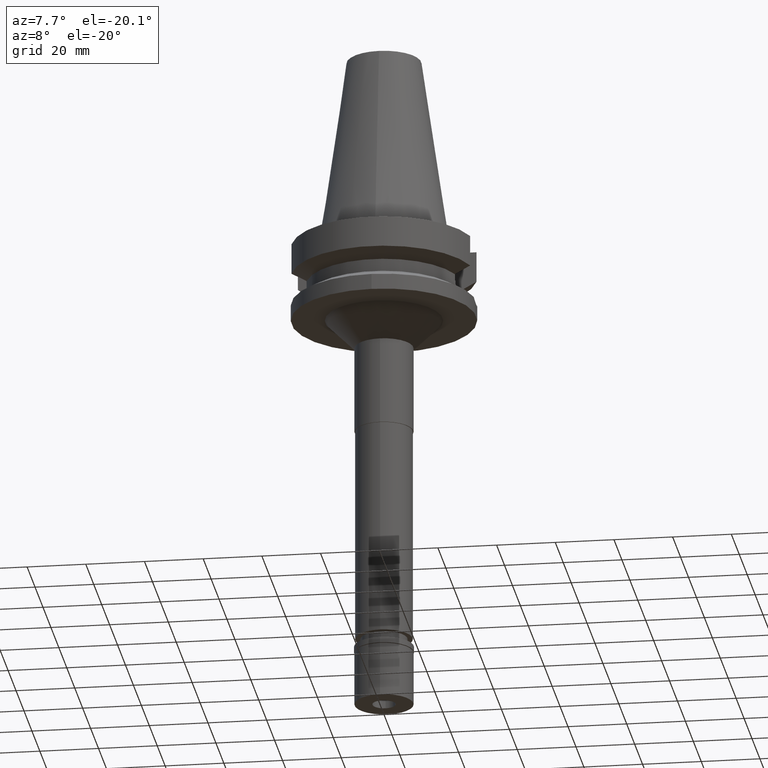
[diagram: clean part render]
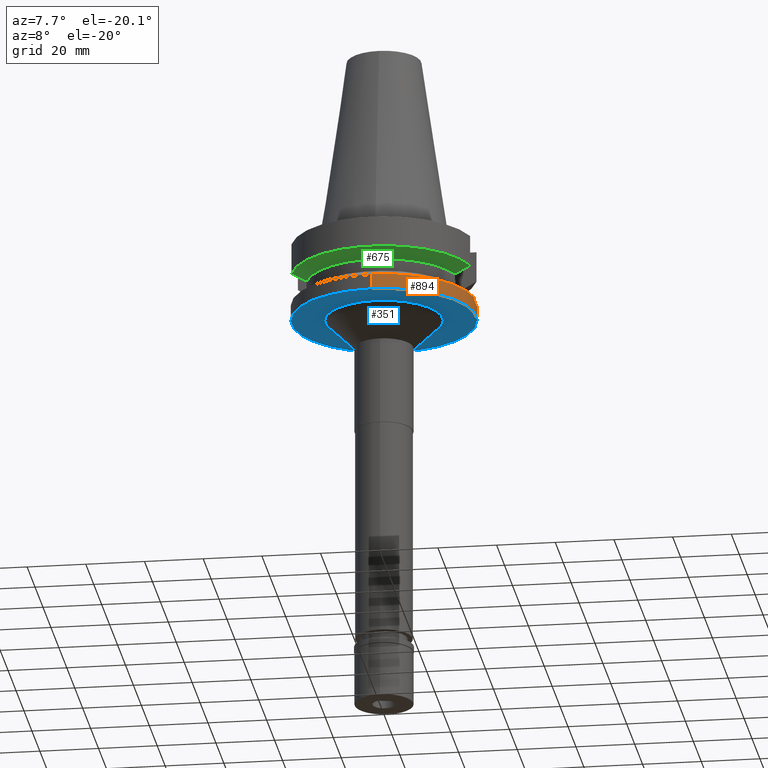
[diagram: same view with three faces highlighted in distinct colors, each labeled with its STEP entity id]
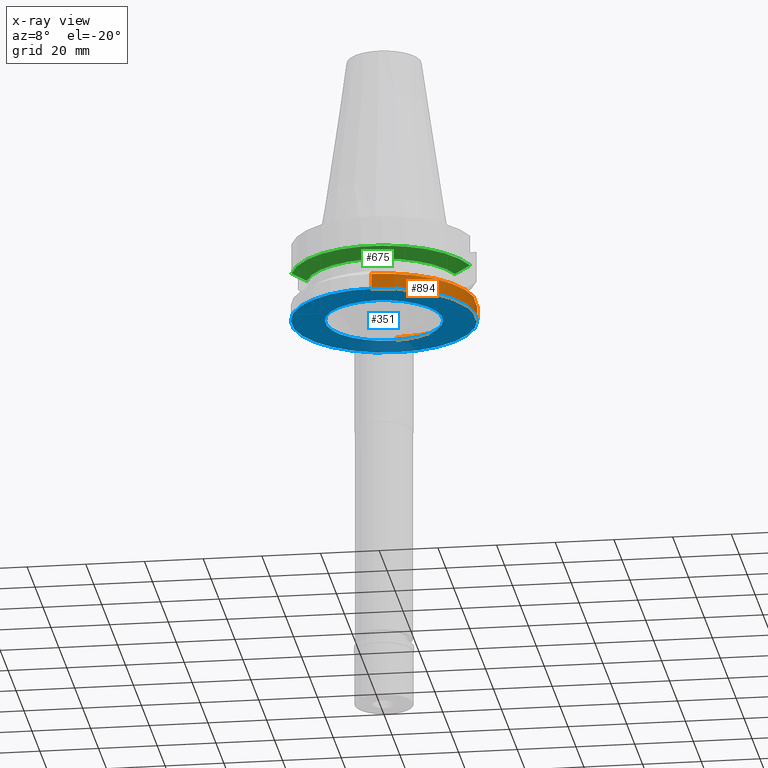
[diagram: x-ray of the same camera — body ghosted, the three highlighted faces saturated]
A machine part, auxiliary view with three faces highlighted in distinct colors.
The next image is the same camera in x-ray (body ghosted, the three faces saturated) — at least one of them is partly hidden behind the body in this view.
Their STEP definitions:

[orange] entity #894 — the highlighted cylindrical surface (partial cylindrical patch) has radius 31.5 mm, axis along (0, 0, -1).
#4 = ORIENTED_EDGE ( 'NONE', *, *, #2268, .T. ) ;
#131 = LINE ( 'NONE', #2894, #541 ) ;
#195 = CARTESIAN_POINT ( 'NONE',  ( 31.49259467034124782, -0.7874548469573079412, -22.97109692753277699 ) ) ;
#261 = DIRECTION ( 'NONE',  ( 0.0000000000000000000, 0.0000000000000000000, -1.000000000000000000 ) ) ;
#293 = EDGE_CURVE ( 'NONE', #1372, #372, #791, .T. ) ;
#306 = CARTESIAN_POINT ( 'NONE',  ( 0.0000000000000000000, 0.0000000000000000000, -21.63449434733000132 ) ) ;
#372 = VERTEX_POINT ( 'NONE', #538 ) ;
#378 = CIRCLE ( 'NONE', #2901, 31.50000000000001421 ) ;
#513 = ORIENTED_EDGE ( 'NONE', *, *, #985, .T. ) ;
#538 = CARTESIAN_POINT ( 'NONE',  ( 0.0000000000000000000, 31.50000000000000000, -27.00000000000000000 ) ) ;
#541 = VECTOR ( 'NONE', #1193, 1000.000000000000000 ) ;
#564 = EDGE_CURVE ( 'NONE', #2762, #2588, #2683, .T. ) ;
#570 = ORIENTED_EDGE ( 'NONE', *, *, #2145, .T. ) ;
#597 = CARTESIAN_POINT ( 'NONE',  ( 31.46967550390165158, 1.577178520063330147, -22.88365894156468983 ) ) ;
#700 = CARTESIAN_POINT ( 'NONE',  ( 31.17899877608999759, -4.485536235554000051, -21.63449434733000132 ) ) ;
#753 = CARTESIAN_POINT ( 'NONE',  ( 0.0000000000000000000, 0.0000000000000000000, -21.63449434733000132 ) ) ;
#791 = LINE ( 'NONE', #1991, #2271 ) ;
#806 = DIRECTION ( 'NONE',  ( 0.0000000000000000000, 1.000000000000000000, 0.0000000000000000000 ) ) ;
#862 = CARTESIAN_POINT ( 'NONE',  ( 0.0000000000000000000, 0.0000000000000000000, -27.00000000000000000 ) ) ;
#874 = CYLINDRICAL_SURFACE ( 'NONE', #945, 31.50000000000000000 ) ;
#885 = CARTESIAN_POINT ( 'NONE',  ( 31.17899877608999759, 4.485536235554000051, -21.63449434733000132 ) ) ;
#892 = CARTESIAN_POINT ( 'NONE',  ( 31.34930674665523753, -3.083094617881187105, -22.38886404829550258 ) ) ;
#894 = ADVANCED_FACE ( 'NONE', ( #1107 ), #874, .T. ) ;
#919 = EDGE_CURVE ( 'NONE', #2203, #3008, #131, .T. ) ;
#930 = AXIS2_PLACEMENT_3D ( 'NONE', #862, #1822, #1108 ) ;
#945 = AXIS2_PLACEMENT_3D ( 'NONE', #2671, #1668, #1718 ) ;
#985 = EDGE_CURVE ( 'NONE', #1372, #2762, #2961, .T. ) ;
#1107 = FACE_OUTER_BOUND ( 'NONE', #2559, .T. ) ;
#1108 = DIRECTION ( 'NONE',  ( 0.0000000000000000000, -1.000000000000000000, 0.0000000000000000000 ) ) ;
#1193 = DIRECTION ( 'NONE',  ( 0.0000000000000000000, -1.099151708819000049E-13, -1.000000000000000000 ) ) ;
#1307 = AXIS2_PLACEMENT_3D ( 'NONE', #306, #261, #806 ) ;
#1372 = VERTEX_POINT ( 'NONE', #1429 ) ;
#1391 = CARTESIAN_POINT ( 'NONE',  ( 31.44158353607694067, -1.955065889798571321, -22.76910259099622991 ) ) ;
#1407 = CARTESIAN_POINT ( 'NONE',  ( 31.49999999999963407, -0.3946661846352950143, -23.00000000000000000 ) ) ;
#1429 = CARTESIAN_POINT ( 'NONE',  ( 0.0000000000000000000, 31.50000000000000000, -21.63449434733000132 ) ) ;
#1595 = VERTEX_POINT ( 'NONE', #2986 ) ;
#1597 = CARTESIAN_POINT ( 'NONE',  ( 31.50000000000073541, 0.7893576119378173939, -23.00000000000000355 ) ) ;
#1665 = ORIENTED_EDGE ( 'NONE', *, *, #2365, .T. ) ;
#1668 = DIRECTION ( 'NONE',  ( 0.0000000000000000000, 0.0000000000000000000, -1.000000000000000000 ) ) ;
#1718 = DIRECTION ( 'NONE',  ( 0.0000000000000000000, -1.000000000000000000, 0.0000000000000000000 ) ) ;
#1822 = DIRECTION ( 'NONE',  ( 0.0000000000000000000, 0.0000000000000000000, 1.000000000000000000 ) ) ;
#1837 = CARTESIAN_POINT ( 'NONE',  ( 31.50000000000000000, -2.934563038329999756E-11, -23.00000000000000000 ) ) ;
#1961 = DIRECTION ( 'NONE',  ( 0.0000000000000000000, 0.0000000000000000000, -1.000000000000000000 ) ) ;
#1973 = DIRECTION ( 'NONE',  ( 0.0000000000000000000, 1.099151708819000049E-13, -1.000000000000000000 ) ) ;
#1991 = CARTESIAN_POINT ( 'NONE',  ( 0.0000000000000000000, 31.50000000000000000, -21.63449434733000132 ) ) ;
#2145 = EDGE_CURVE ( 'NONE', #3008, #372, #2753, .T. ) ;
#2154 = CARTESIAN_POINT ( 'NONE',  ( 31.27123206109135722, -3.806896411652039625, -22.05417675796460131 ) ) ;
#2203 = VERTEX_POINT ( 'NONE', #2291 ) ;
#2268 = EDGE_CURVE ( 'NONE', #2588, #1595, #2867, .T. ) ;
#2271 = VECTOR ( 'NONE', #1973, 1000.000000000000000 ) ;
#2291 = CARTESIAN_POINT ( 'NONE',  ( 0.0000000000000000000, -31.50000000000000000, -21.63449434733000132 ) ) ;
#2365 = EDGE_CURVE ( 'NONE', #1595, #2203, #378, .T. ) ;
#2367 = CARTESIAN_POINT ( 'NONE',  ( 31.39916929733682593, -2.525575560059503122, -22.59615553196653792 ) ) ;
#2376 = ORIENTED_EDGE ( 'NONE', *, *, #919, .T. ) ;
#2384 = CARTESIAN_POINT ( 'NONE',  ( 31.22674061651521882, -4.153682315317585250, -21.85718026892643451 ) ) ;
#2513 = CARTESIAN_POINT ( 'NONE',  ( 0.0000000000000000000, -31.50000000000000000, -27.00000000000000000 ) ) ;
#2559 = EDGE_LOOP ( 'NONE', ( #1665, #2376, #570, #2880, #513, #3080, #4 ) ) ;
#2588 = VERTEX_POINT ( 'NONE', #1837 ) ;
#2621 = CARTESIAN_POINT ( 'NONE',  ( 31.17899877608999759, 4.485536235554000051, -21.63449434733000132 ) ) ;
#2641 = CARTESIAN_POINT ( 'NONE',  ( 31.50000000000000000, -2.934563038329999756E-11, -23.00000000000000000 ) ) ;
#2661 = CARTESIAN_POINT ( 'NONE',  ( 31.46325379447574733, -1.570752963011715853, -22.85518567226871767 ) ) ;
#2671 = CARTESIAN_POINT ( 'NONE',  ( 0.0000000000000000000, 0.0000000000000000000, 0.0000000000000000000 ) ) ;
#2683 = B_SPLINE_CURVE_WITH_KNOTS ( 'NONE', 3,
 ( #885, #3049, #2861, #597, #1597, #2845 ),
 .UNSPECIFIED., .F., .F.,
 ( 4, 2, 4 ),
 ( 0.0000000000000000000, 0.5000000000000000000, 1.000000000000000000 ),
 .UNSPECIFIED. ) ;
#2714 = DIRECTION ( 'NONE',  ( 0.9898094849552905306, -0.1423979757318985240, 0.0000000000000000000 ) ) ;
#2753 = CIRCLE ( 'NONE', #930, 31.50000000000000000 ) ;
#2762 = VERTEX_POINT ( 'NONE', #2621 ) ;
#2845 = CARTESIAN_POINT ( 'NONE',  ( 31.50000000000000000, -2.934563038329999756E-11, -23.00000000000000000 ) ) ;
#2861 = CARTESIAN_POINT ( 'NONE',  ( 31.35695069539817936, 3.093478865514339038, -22.42399680451590527 ) ) ;
#2867 = B_SPLINE_CURVE_WITH_KNOTS ( 'NONE', 3,
 ( #2641, #1407, #195, #2661, #1391, #2367, #2868, #892, #2917, #2154, #2384, #700 ),
 .UNSPECIFIED., .F., .F.,
 ( 4, 2, 2, 2, 2, 4 ),
 ( 0.0000000000000000000, 0.2499999999999996669, 0.4999999999999993339, 0.6249999999999992228, 0.7499999999999992228, 1.000000000000000000 ),
 .UNSPECIFIED. ) ;
#2868 = CARTESIAN_POINT ( 'NONE',  ( 31.38348763311464396, -2.713154971768460655, -22.53163762736170028 ) ) ;
#2880 = ORIENTED_EDGE ( 'NONE', *, *, #293, .F. ) ;
#2894 = CARTESIAN_POINT ( 'NONE',  ( 0.0000000000000000000, -31.50000000000000000, -21.63449434733000132 ) ) ;
#2901 = AXIS2_PLACEMENT_3D ( 'NONE', #753, #1961, #2714 ) ;
#2917 = CARTESIAN_POINT ( 'NONE',  ( 31.33093042433985431, -3.264337983741049776, -22.31113734268445370 ) ) ;
#2961 = CIRCLE ( 'NONE', #1307, 31.50000000000000000 ) ;
#2986 = CARTESIAN_POINT ( 'NONE',  ( 31.17899877608999759, -4.485536235554000051, -21.63449434733000132 ) ) ;
#3008 = VERTEX_POINT ( 'NONE', #2513 ) ;
#3049 = CARTESIAN_POINT ( 'NONE',  ( 31.27447935389634281, 3.821849964353555951, -22.07985171676086722 ) ) ;
#3080 = ORIENTED_EDGE ( 'NONE', *, *, #564, .T. ) ;

[blue] entity #351 — the highlighted planar face has unit normal (0, 0, -1).
#32 = CARTESIAN_POINT ( 'NONE',  ( 0.0000000000000000000, 0.0000000000000000000, -27.00000000000000000 ) ) ;
#59 = FACE_BOUND ( 'NONE', #247, .T. ) ;
#66 = CIRCLE ( 'NONE', #488, 20.00000000000000000 ) ;
#241 = ORIENTED_EDGE ( 'NONE', *, *, #1609, .F. ) ;
#247 = EDGE_LOOP ( 'NONE', ( #2092, #241 ) ) ;
#296 = CARTESIAN_POINT ( 'NONE',  ( 0.0000000000000000000, -20.00000000000000000, -27.00000000000000000 ) ) ;
#329 = EDGE_CURVE ( 'NONE', #1688, #3186, #1386, .T. ) ;
#351 = ADVANCED_FACE ( 'NONE', ( #2280, #59 ), #1020, .T. ) ;
#355 = CARTESIAN_POINT ( 'NONE',  ( 0.0000000000000000000, 20.00000000000000000, -27.00000000000000000 ) ) ;
#372 = VERTEX_POINT ( 'NONE', #538 ) ;
#488 = AXIS2_PLACEMENT_3D ( 'NONE', #520, #1003, #772 ) ;
#520 = CARTESIAN_POINT ( 'NONE',  ( 0.0000000000000000000, 0.0000000000000000000, -27.00000000000000000 ) ) ;
#538 = CARTESIAN_POINT ( 'NONE',  ( 0.0000000000000000000, 31.50000000000000000, -27.00000000000000000 ) ) ;
#558 = ORIENTED_EDGE ( 'NONE', *, *, #2145, .F. ) ;
#614 = AXIS2_PLACEMENT_3D ( 'NONE', #32, #2756, #2736 ) ;
#772 = DIRECTION ( 'NONE',  ( 0.0000000000000000000, -1.000000000000000000, 0.0000000000000000000 ) ) ;
#862 = CARTESIAN_POINT ( 'NONE',  ( 0.0000000000000000000, 0.0000000000000000000, -27.00000000000000000 ) ) ;
#930 = AXIS2_PLACEMENT_3D ( 'NONE', #862, #1822, #1108 ) ;
#1003 = DIRECTION ( 'NONE',  ( 0.0000000000000000000, 0.0000000000000000000, -1.000000000000000000 ) ) ;
#1020 = PLANE ( 'NONE',  #614 ) ;
#1108 = DIRECTION ( 'NONE',  ( 0.0000000000000000000, -1.000000000000000000, 0.0000000000000000000 ) ) ;
#1386 = CIRCLE ( 'NONE', #3035, 20.00000000000000000 ) ;
#1467 = CARTESIAN_POINT ( 'NONE',  ( 0.0000000000000000000, 0.0000000000000000000, -27.00000000000000000 ) ) ;
#1488 = DIRECTION ( 'NONE',  ( 0.0000000000000000000, 1.000000000000000000, 0.0000000000000000000 ) ) ;
#1520 = CIRCLE ( 'NONE', #1784, 31.50000000000000000 ) ;
#1587 = EDGE_CURVE ( 'NONE', #372, #3008, #1520, .T. ) ;
#1609 = EDGE_CURVE ( 'NONE', #3186, #1688, #66, .T. ) ;
#1688 = VERTEX_POINT ( 'NONE', #355 ) ;
#1784 = AXIS2_PLACEMENT_3D ( 'NONE', #1467, #3196, #2229 ) ;
#1786 = DIRECTION ( 'NONE',  ( 0.0000000000000000000, 0.0000000000000000000, -1.000000000000000000 ) ) ;
#1822 = DIRECTION ( 'NONE',  ( 0.0000000000000000000, 0.0000000000000000000, 1.000000000000000000 ) ) ;
#2092 = ORIENTED_EDGE ( 'NONE', *, *, #329, .F. ) ;
#2145 = EDGE_CURVE ( 'NONE', #3008, #372, #2753, .T. ) ;
#2153 = EDGE_LOOP ( 'NONE', ( #2465, #558 ) ) ;
#2229 = DIRECTION ( 'NONE',  ( 0.0000000000000000000, 1.000000000000000000, 0.0000000000000000000 ) ) ;
#2254 = CARTESIAN_POINT ( 'NONE',  ( 0.0000000000000000000, 0.0000000000000000000, -27.00000000000000000 ) ) ;
#2280 = FACE_OUTER_BOUND ( 'NONE', #2153, .T. ) ;
#2465 = ORIENTED_EDGE ( 'NONE', *, *, #1587, .F. ) ;
#2513 = CARTESIAN_POINT ( 'NONE',  ( 0.0000000000000000000, -31.50000000000000000, -27.00000000000000000 ) ) ;
#2736 = DIRECTION ( 'NONE',  ( 0.0000000000000000000, -1.000000000000000000, 0.0000000000000000000 ) ) ;
#2753 = CIRCLE ( 'NONE', #930, 31.50000000000000000 ) ;
#2756 = DIRECTION ( 'NONE',  ( 0.0000000000000000000, 0.0000000000000000000, -1.000000000000000000 ) ) ;
#3008 = VERTEX_POINT ( 'NONE', #2513 ) ;
#3035 = AXIS2_PLACEMENT_3D ( 'NONE', #2254, #1786, #1488 ) ;
#3186 = VERTEX_POINT ( 'NONE', #296 ) ;
#3196 = DIRECTION ( 'NONE',  ( 0.0000000000000000000, 0.0000000000000000000, 1.000000000000000000 ) ) ;

[green] entity #675 — the highlighted conical surface has half-angle 60 deg.
#242 = CARTESIAN_POINT ( 'NONE',  ( 0.0000000000000000000, 0.0000000000000000000, -11.56550565266999975 ) ) ;
#260 = DIRECTION ( 'NONE',  ( 0.0000000000000000000, -1.000000000000000000, 0.0000000000000000000 ) ) ;
#270 = EDGE_CURVE ( 'NONE', #2008, #825, #1639, .T. ) ;
#395 = EDGE_CURVE ( 'NONE', #1704, #825, #1182, .T. ) ;
#401 = ORIENTED_EDGE ( 'NONE', *, *, #395, .F. ) ;
#675 = ADVANCED_FACE ( 'NONE', ( #3160 ), #981, .T. ) ;
#745 = CARTESIAN_POINT ( 'NONE',  ( 28.57294951894145285, -8.050008280307157094, -12.61547990224312521 ) ) ;
#825 = VERTEX_POINT ( 'NONE', #1939 ) ;
#853 = CARTESIAN_POINT ( 'NONE',  ( -30.45402291358000113, -8.049999278195999253, -11.56551215380000031 ) ) ;
#981 = CONICAL_SURFACE ( 'NONE', #2217, 29.00000000000000000, 1.047197551196400456 ) ;
#1037 = CARTESIAN_POINT ( 'NONE',  ( 26.83757730459284119, -8.050003177712293123, -13.57772965054501491 ) ) ;
#1052 = DIRECTION ( 'NONE',  ( 0.0000000000000000000, 0.0000000000000000000, 1.000000000000000000 ) ) ;
#1138 = VERTEX_POINT ( 'NONE', #2329 ) ;
#1168 = CARTESIAN_POINT ( 'NONE',  ( 25.24772266958000344, -8.050000000000000711, -14.45225699861000024 ) ) ;
#1182 = CIRCLE ( 'NONE', #1599, 31.50000000000000000 ) ;
#1276 = EDGE_CURVE ( 'NONE', #1704, #1138, #2594, .T. ) ;
#1309 = CARTESIAN_POINT ( 'NONE',  ( -26.83754616083558986, -8.049990821977580424, -13.57774888054535900 ) ) ;
#1320 = CARTESIAN_POINT ( 'NONE',  ( -30.45402291358000113, -8.049999278195999253, -11.56551215380000031 ) ) ;
#1348 = AXIS2_PLACEMENT_3D ( 'NONE', #2241, #1981, #1776 ) ;
#1599 = AXIS2_PLACEMENT_3D ( 'NONE', #242, #1052, #260 ) ;
#1639 = B_SPLINE_CURVE_WITH_KNOTS ( 'NONE', 3,
 ( #1751, #1037, #745, #2974 ),
 .UNSPECIFIED., .F., .F.,
 ( 4, 4 ),
 ( 0.0000000000000000000, 1.000000000000000000 ),
 .UNSPECIFIED. ) ;
#1704 = VERTEX_POINT ( 'NONE', #1320 ) ;
#1751 = CARTESIAN_POINT ( 'NONE',  ( 25.24772266958000344, -8.050000000000000711, -14.45225699861000024 ) ) ;
#1776 = DIRECTION ( 'NONE',  ( 0.9527442516822307583, -0.3037735849057093818, 0.0000000000000000000 ) ) ;
#1845 = CARTESIAN_POINT ( 'NONE',  ( -28.57292329137948173, -8.049998557331802473, -12.61549605472040270 ) ) ;
#1939 = CARTESIAN_POINT ( 'NONE',  ( 30.45402272279000044, -8.049999999999000622, -11.56550565266999975 ) ) ;
#1981 = DIRECTION ( 'NONE',  ( 0.0000000000000000000, 0.0000000000000000000, -1.000000000000000000 ) ) ;
#2008 = VERTEX_POINT ( 'NONE', #1168 ) ;
#2123 = CIRCLE ( 'NONE', #1348, 26.50000000000000711 ) ;
#2194 = CARTESIAN_POINT ( 'NONE',  ( 0.0000000000000000000, 0.0000000000000000000, -13.00888132564000088 ) ) ;
#2217 = AXIS2_PLACEMENT_3D ( 'NONE', #2194, #2373, #3125 ) ;
#2241 = CARTESIAN_POINT ( 'NONE',  ( 0.0000000000000000000, 0.0000000000000000000, -14.45225699861000024 ) ) ;
#2329 = CARTESIAN_POINT ( 'NONE',  ( -25.24772413111999825, -8.049995416064998466, -14.45229202584999939 ) ) ;
#2348 = ORIENTED_EDGE ( 'NONE', *, *, #1276, .T. ) ;
#2373 = DIRECTION ( 'NONE',  ( 0.0000000000000000000, 0.0000000000000000000, 1.000000000000000000 ) ) ;
#2489 = EDGE_CURVE ( 'NONE', #2008, #1138, #2123, .T. ) ;
#2594 = B_SPLINE_CURVE_WITH_KNOTS ( 'NONE', 3,
 ( #853, #1845, #1309, #2831 ),
 .UNSPECIFIED., .F., .F.,
 ( 4, 4 ),
 ( 0.0000000000000000000, 1.000000000000000000 ),
 .UNSPECIFIED. ) ;
#2669 = ORIENTED_EDGE ( 'NONE', *, *, #2489, .F. ) ;
#2822 = EDGE_LOOP ( 'NONE', ( #2348, #2669, #3054, #401 ) ) ;
#2831 = CARTESIAN_POINT ( 'NONE',  ( -25.24772413111999825, -8.049995416064998466, -14.45229202584999939 ) ) ;
#2974 = CARTESIAN_POINT ( 'NONE',  ( 30.45402272279000044, -8.049999999999000622, -11.56550565266999975 ) ) ;
#3054 = ORIENTED_EDGE ( 'NONE', *, *, #270, .T. ) ;
#3125 = DIRECTION ( 'NONE',  ( 0.0000000000000000000, 1.000000000000000000, 0.0000000000000000000 ) ) ;
#3160 = FACE_OUTER_BOUND ( 'NONE', #2822, .T. ) ;